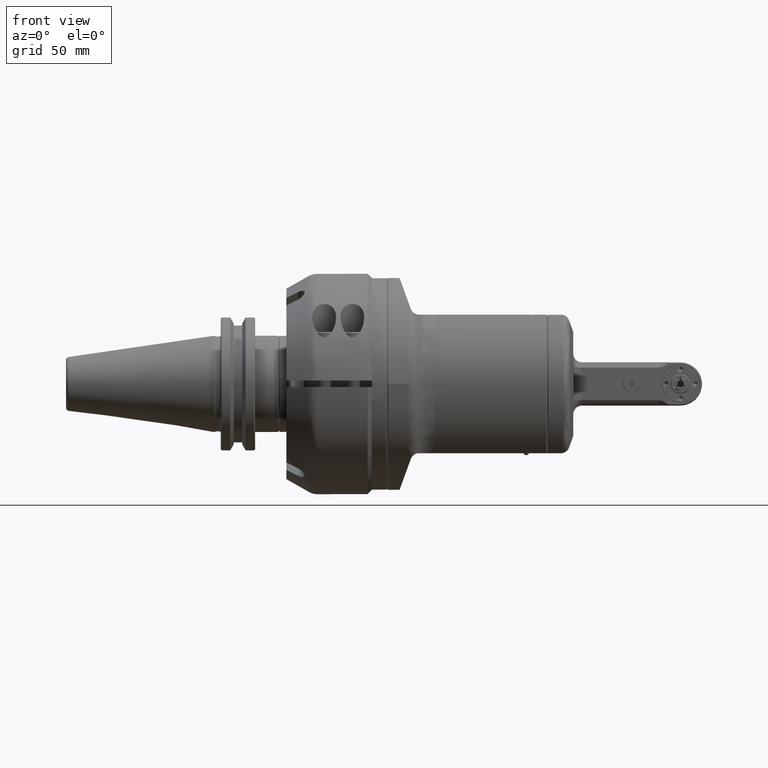
[diagram: clean part render]
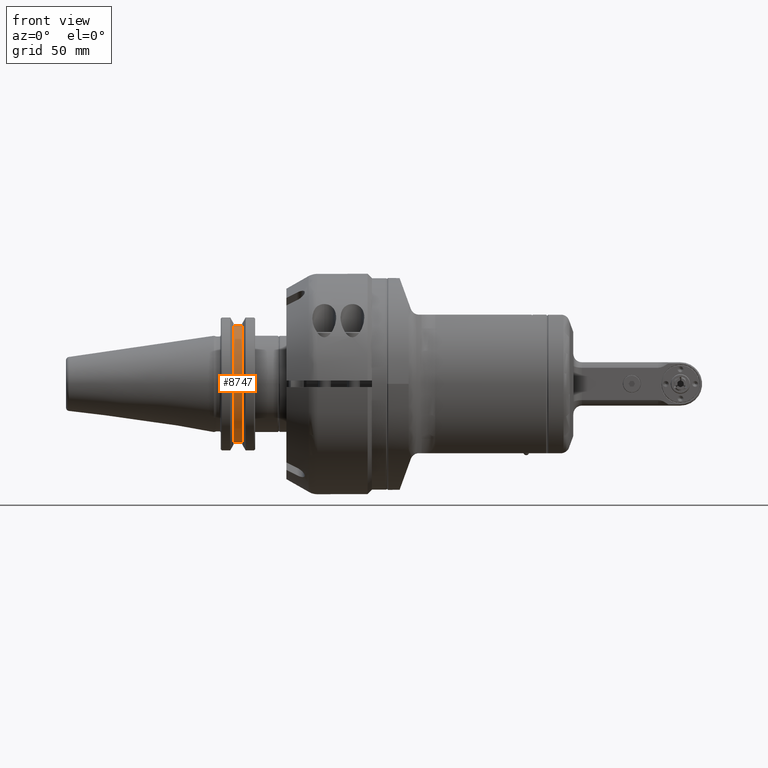
[diagram: same view with one face highlighted and labeled with its STEP entity id]
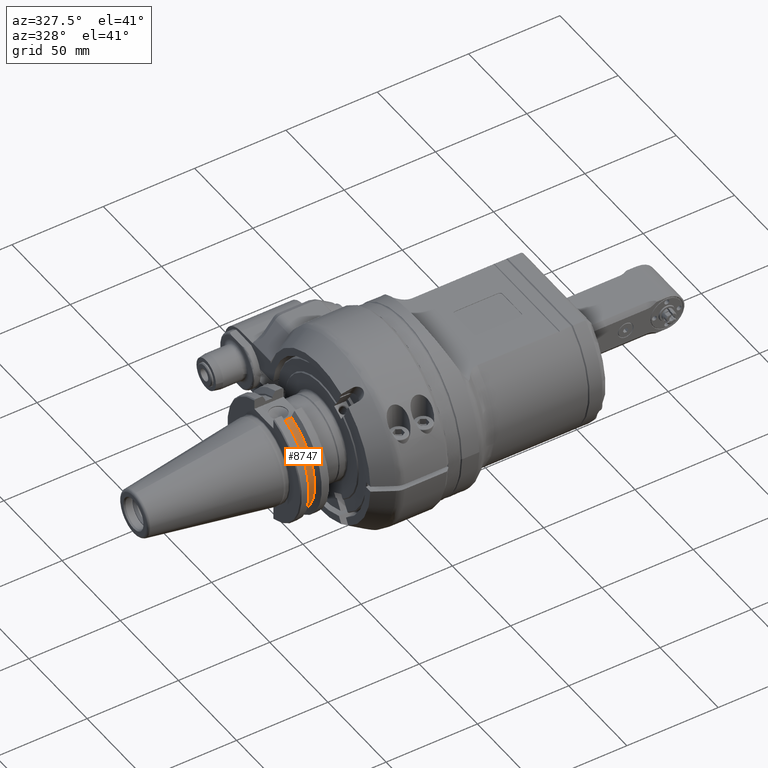
[diagram: same view with one face highlighted and labeled with its STEP entity id]
A machine part, front view. The second image highlights one B-rep face of the part: STEP entity #8747.
A second angle (auxiliary view) of the same face is appended — the face is thin or edge-on in the first view.
In plain terms, the highlighted cylindrical surface (partial cylindrical patch) has radius 28.1815 mm, axis along (-1, -0, 0).
Its self-contained STEP definition (entity closure, byte-faithful):
#1062=FACE_OUTER_BOUND('',#1621,.T.);
#1621=EDGE_LOOP('',(#7788,#7789,#7790,#7791));
#2365=LINE('',#45751,#2943);
#2367=LINE('',#45760,#2945);
#2943=VECTOR('',#12168,3.835);
#2945=VECTOR('',#12178,3.835);
#3329=CIRCLE('',#9842,28.1815);
#3335=CIRCLE('',#9856,28.1815);
#4132=VERTEX_POINT('',#45700);
#4138=VERTEX_POINT('',#45749);
#4139=VERTEX_POINT('',#45753);
#4141=VERTEX_POINT('',#45759);
#5349=EDGE_CURVE('',#4132,#4138,#2365,.T.);
#5352=EDGE_CURVE('',#4132,#4139,#3329,.T.);
#5353=EDGE_CURVE('',#4141,#4139,#2367,.T.);
#5366=EDGE_CURVE('',#4141,#4138,#3335,.T.);
#7788=ORIENTED_EDGE('',*,*,#5349,.T.);
#7789=ORIENTED_EDGE('',*,*,#5366,.F.);
#7790=ORIENTED_EDGE('',*,*,#5353,.T.);
#7791=ORIENTED_EDGE('',*,*,#5352,.F.);
#7990=CYLINDRICAL_SURFACE('',#9857,28.1815);
#8747=ADVANCED_FACE('',(#1062),#7990,.T.);
#9842=AXIS2_PLACEMENT_3D('',#45757,#12174,#12175);
#9856=AXIS2_PLACEMENT_3D('',#45821,#12206,#12207);
#9857=AXIS2_PLACEMENT_3D('',#45822,#12208,#12209);
#12168=DIRECTION('',(1.,0.,0.));
#12174=DIRECTION('center_axis',(-1.,0.,0.));
#12175=DIRECTION('ref_axis',(0.,0.95682354362477,-0.290669410783691));
#12178=DIRECTION('',(-1.,0.,0.));
#12206=DIRECTION('center_axis',(1.,0.,0.));
#12207=DIRECTION('ref_axis',(0.,-0.95682354362477,-0.290669410783691));
#12208=DIRECTION('center_axis',(1.,0.,0.));
#12209=DIRECTION('ref_axis',(0.,-1.,0.));
#45700=CARTESIAN_POINT('',(28.948,26.96472269466,-8.1915));
#45749=CARTESIAN_POINT('',(32.783,26.96472269466,-8.1915));
#45751=CARTESIAN_POINT('',(28.948,26.96472269466,-8.1915));
#45753=CARTESIAN_POINT('',(28.948,-26.96472269466,-8.1915));
#45757=CARTESIAN_POINT('Origin',(28.948,0.,0.));
#45759=CARTESIAN_POINT('',(32.783,-26.96472269466,-8.1915));
#45760=CARTESIAN_POINT('',(32.783,-26.96472269466,-8.1915));
#45821=CARTESIAN_POINT('Origin',(32.783,0.,0.));
#45822=CARTESIAN_POINT('Origin',(30.8655,0.,0.));